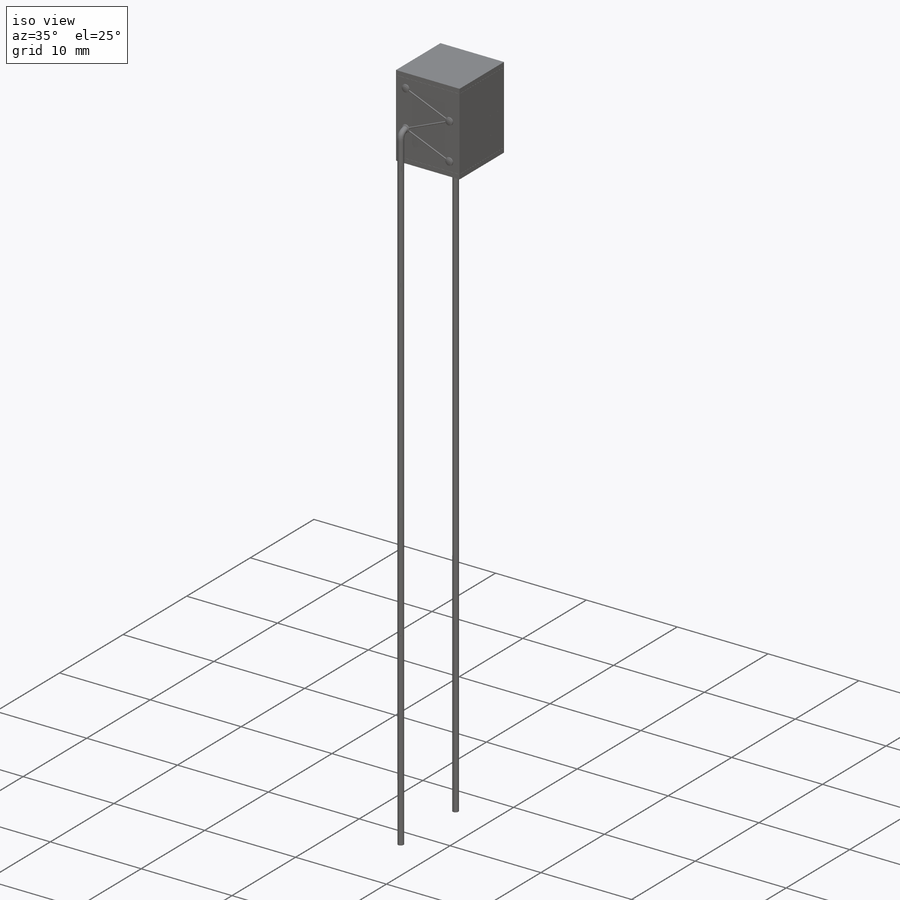
[diagram: iso view]
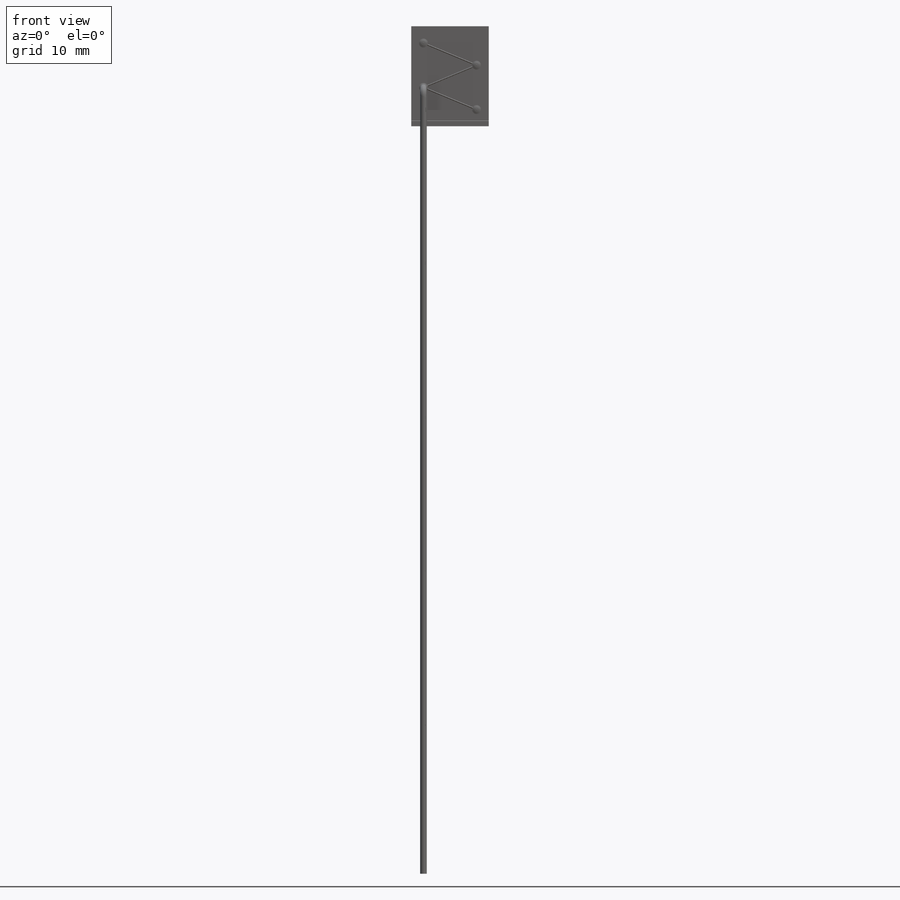
[diagram: front view]
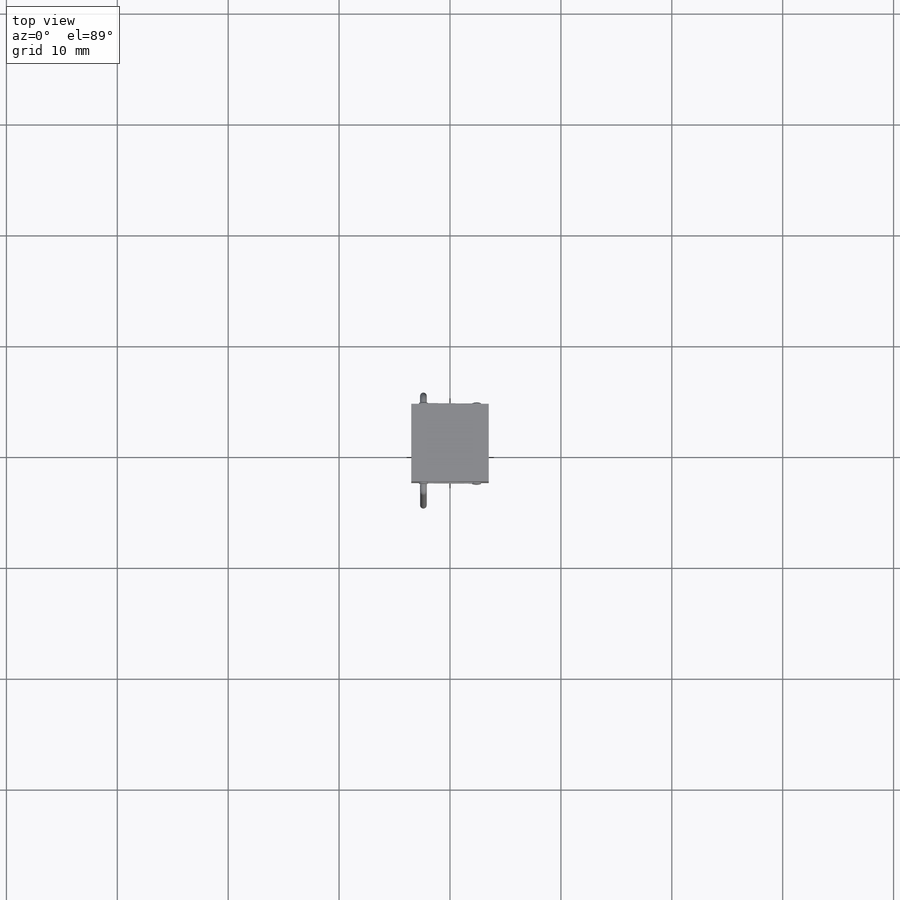
[diagram: top view]
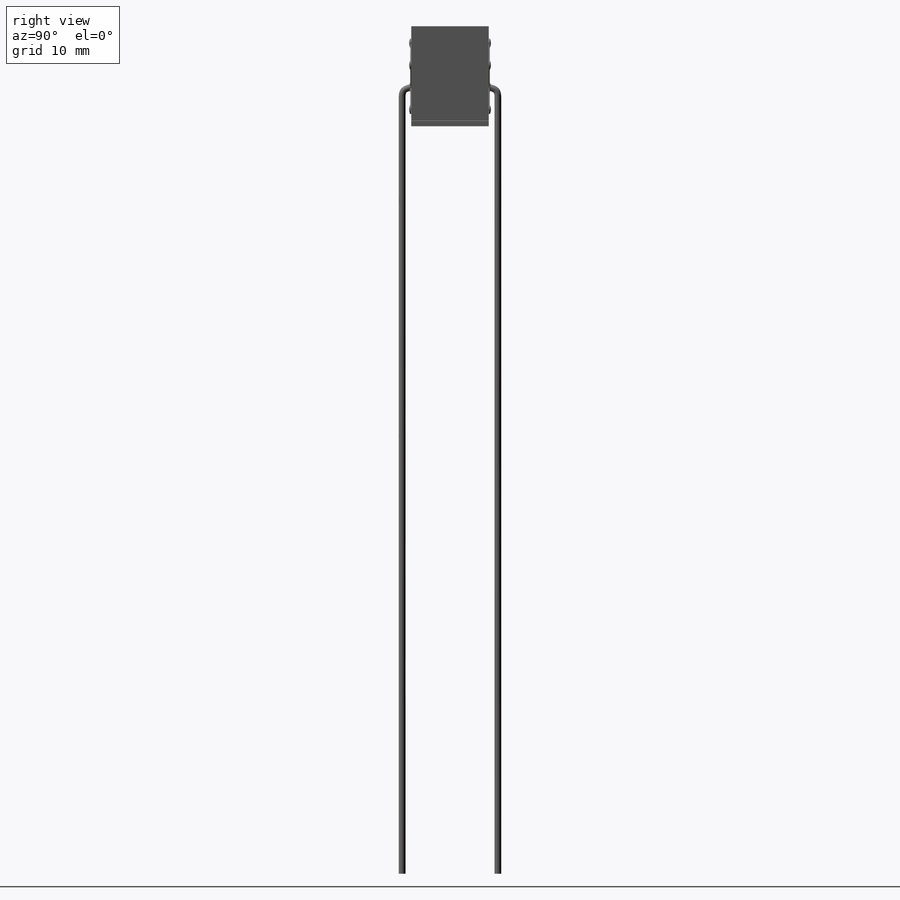
[diagram: right view]
SOLIDWORKS PART (.sldprt)
format: sldprt  version: not decoded by parser v0  size: 674,816 bytes
history: native  units: mm
features: sketch x8, plane x8, extrude x4, dome x4, sweep x2, material x1, pattern_linear x1, mirror x1 (+13 scaffold rows collapsed)
feature tree (42):
  scaffold x13  (default folders/planes/origin — collapsed)
  material  "Material <not specified>"
  sketch  "Sketch1"  dims[c1.D1=~27.482152mm c1.D2=~36.551262mm c2.D1=7.0mm c2.D2=110.0mm]
  extrude  "Boss-Extrude1"  Depth=2mm
  pattern_linear  "LPattern3"  Count1=4 Count2=1 Spacing1=2.0001mm Spacing2=2.5mm
  plane  "Plane1"  Offset=0.01mm
  sketch  "Sketch3"  dims[D1=7.0mm D2=7.0mm]
  extrude  "Boss-Extrude2"  Depth=0.5mm
  plane  "Plane2"  Offset=0.01mm
  sketch  "Sketch4"  dims[D1=7.0mm D2=7.0mm]
  extrude  "Boss-Extrude3"  Depth=0.5mm
  plane  "Plane3"  Offset=0.01mm
  sketch  "Sketch5"  dims[c1.D3=0.45mm c1.D1=1.1mm c1.D2=1.1mm c2.D1=1.1mm c2.D2=1.1mm]
  extrude  "Boss-Extrude4"  Depth=0.1mm
  dome  "Dome4"
  dome  "Dome5"
  dome  "Dome6"
  dome  "Dome7"
  plane  "Plane4"  Offset=0.01mm
  sketch  "Sketch6"
  plane  "Plane5"
  sketch  "Sketch8"  dims[D1=0.09mm]
  sweep  "Sweep1"
  plane  "Plane6"  Offset=0mm
  plane  "Plane7"  Offset=3.5mm
  sketch  "Sketch11"  dims[D1=0.25mm]
  plane  "Plane8"
  sketch  "Sketch12"  dims[D1=70.0mm]
  sweep  "Sweep9"
  mirror  "Mirror1"
decode coverage: 12 of 20 modeling features carry decoded parameters
note: ~ marks probable driven/reference dimensions
note: suppression state not decoded; provenance and decode notes live in map.json
